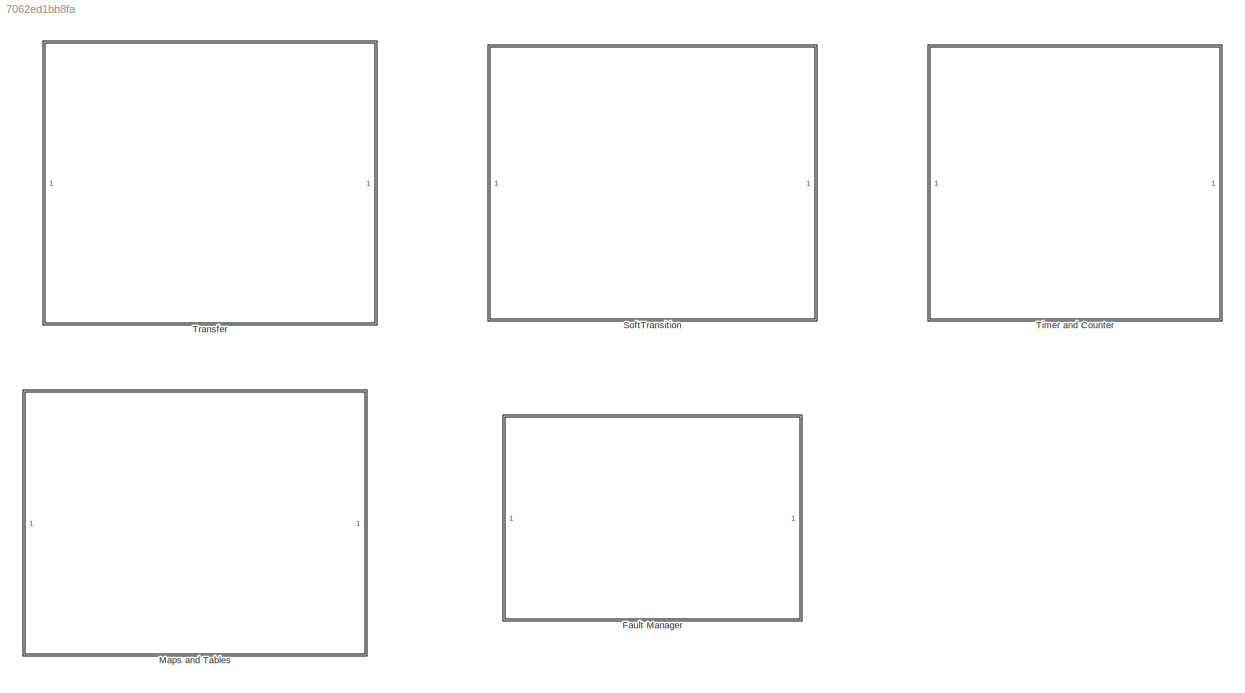
MODEL slx_7062ed1bb8fa
KIND model
CONFIG AbsTol = auto
CONFIG EnableMultiTasking = off
CONFIG FixedStep = 1
CONFIG MaxStep = auto
CONFIG MinStep = auto
CONFIG RelTol = 1e-3
CONFIG SampleTimeConstraint = Unconstrained
CONFIG SolverName = FixedStepDiscrete
CONFIG StartTime = 0.0
CONFIG StopTime = 10
BLOCK [SubSystem] Fault Manager
  Commented = on
  Ports = []
  RequestExecContextInheritance = off
BLOCK [Constant] Fault Manager/Constant
  Value = FM_Test_fault_Group_CA
BLOCK [Display] Fault Manager/Display
  Decimation = 1
  Ports = [1]
BLOCK [Display] Fault Manager/Display1
  Decimation = 1
  Ports = [1]
BLOCK [Reference] Fault Manager/Get_FG_Status  REF=sllib/Fault Manager/Get_FG_Status  (lib defined in slx_2b0aa6d284ff)
  Ports = [1, 1]
  SourceBlock = sllib/Fault Manager/Get_FG_Status
  SourceProductName = sllib
BLOCK [Scope] Fault Manager/Scope
  Floating = off
  NumInputPorts = 1
  Ports = [1]
  ScopeSpecificationString = Simulink.scopes.TimeScopeBlockCfg('CurrentConfiguration', extmgr.ConfigurationSet(extmgr.Configuration('Core','General UI',true),extmgr.Configuration('Core','Source UI',true),extmgr.Configuration('Sources','WiredSimulink',true,'DataLoggingVariableName','ScopeData1'),extmgr.Configuration('Visuals','Time Domain',true,'SerializedDisplays',{struct('MinYLimReal','-1.00000','MaxYLimReal','1.00000','YLab...<+1372ch>
BLOCK [SubSystem] Maps and Tables
  Commented = on
  Ports = []
  RequestExecContextInheritance = off
BLOCK [Constant] Maps and Tables/Constant
  Value = linspace(0,100,11)
BLOCK [Constant] Maps and Tables/Constant1
  Value = 0
BLOCK [Constant] Maps and Tables/Constant2
  Value = -10
BLOCK [Constant] Maps and Tables/Constant3
  Value = 18.987
BLOCK [Constant] Maps and Tables/Constant4
  Value = 2.5
BLOCK [Display] Maps and Tables/Display
  Decimation = 1
  Ports = [1]
BLOCK [Display] Maps and Tables/Display1
  Decimation = 1
  Ports = [1]
BLOCK [Display] Maps and Tables/Display2
  Decimation = 1
  Ports = [1]
BLOCK [Display] Maps and Tables/Display3
  Decimation = 1
  Ports = [1]
BLOCK [Reference] Maps and Tables/RevMap  REF=sllib/Maps and Tables/RevMap  (lib defined in slx_2b0aa6d284ff)
  Ports = [2, 1]
  SourceBlock = sllib/Maps and Tables/RevMap
  SourceProductName = sllib
  SourceType = RevMap
BLOCK [Reference] Maps and Tables/Table1D_Read  REF=sllib/Maps and Tables/Table1D_Read  (lib defined in slx_2b0aa6d284ff)
  Ports = [2, 1]
  SourceBlock = sllib/Maps and Tables/Table1D_Read
  SourceProductName = sllib
  SourceType = Table1D_Read
BLOCK [Reference] Maps and Tables/Table1D_Read_Rollover  REF=sllib/Maps and Tables/Table1D_Read_Rollover  (lib defined in slx_2b0aa6d284ff)
  AttributesFormatString = %<IndexMode>
  Ports = [2, 1]
  SourceBlock = sllib/Maps and Tables/Table1D_Read_Rollover
  SourceProductName = sllib
  SourceType = Table1D_Read_Rollover
BLOCK [Reference] Maps and Tables/Table1D_Write  REF=sllib/Maps and Tables/Table1D_Write  (lib defined in slx_2b0aa6d284ff)
  AttributesFormatString = %<IndexMode>
  Ports = [3, 1]
  SourceBlock = sllib/Maps and Tables/Table1D_Write
  SourceProductName = sllib
  SourceType = Table1D_Write
BLOCK [SubSystem] SoftTransition
  Commented = on
  Ports = []
  RequestExecContextInheritance = off
BLOCK [Constant] SoftTransition/Constant
  OutDataTypeStr = fixdt(1,16,2^-10,0)
  Value = 3
BLOCK [Constant] SoftTransition/Constant1
  OutDataTypeStr = fixdt(1,16,2^-10,0)
  Value = -1
BLOCK [Constant] SoftTransition/Constant2
  OutDataTypeStr = boolean
  Value = 0
BLOCK [Constant] SoftTransition/Constant3
  OutDataTypeStr = uint32
BLOCK [Constant] SoftTransition/Constant4
  OutDataTypeStr = uint32
  Value = 1000
BLOCK [Constant] SoftTransition/Constant5
  OutDataTypeStr = Inherit: Inherit via back propagation
  Value = 0.1
BLOCK [Constant] SoftTransition/Constant6
  OutDataTypeStr = Inherit: Inherit via back propagation
  Value = 0.1
BLOCK [Constant] SoftTransition/Constant7
  OutDataTypeStr = Inherit: Inherit via back propagation
  Value = 3.5
BLOCK [Constant] SoftTransition/Constant8
  OutDataTypeStr = Inherit: Inherit via back propagation
  Value = 2.5
BLOCK [Constant] SoftTransition/Constant9
  OutDataTypeStr = Inherit: Inherit via back propagation
  Value = 0.1
BLOCK [DataTypeConversion] SoftTransition/Data Type Conversion
  OutDataTypeStr = int8
  RndMeth = Floor
  SaturateOnIntegerOverflow = off
BLOCK [DataTypeConversion] SoftTransition/Data Type Conversion1
  OutDataTypeStr = boolean
  RndMeth = Floor
  SaturateOnIntegerOverflow = off
BLOCK [DataTypeConversion] SoftTransition/Data Type Conversion2
  OutDataTypeStr = boolean
  RndMeth = Floor
  SaturateOnIntegerOverflow = off
BLOCK [DataTypeConversion] SoftTransition/Data Type Conversion3
  OutDataTypeStr = double
  RndMeth = Floor
  SaturateOnIntegerOverflow = off
BLOCK [DataTypeConversion] SoftTransition/Data Type Conversion4
  OutDataTypeStr = double
  RndMeth = Floor
  SaturateOnIntegerOverflow = off
BLOCK [Display] SoftTransition/Display
  Decimation = 1
  Ports = [1]
BLOCK [Product] SoftTransition/Divide
  Inputs = */
  OutDataTypeStr = fixdt(0,16,2^-10,0)
  Ports = [2, 1]
BLOCK [Gain] SoftTransition/Gain
  Gain = 20
BLOCK [Reference] SoftTransition/Ramp  REF=sllib/Soft Transitions/Ramp  (lib defined in slx_2b0aa6d284ff)
  Ports = [6, 2]
  SourceBlock = sllib/Soft Transitions/Ramp
  SourceProductName = sllib
  SourceType = Ramp
BLOCK [Reference] SoftTransition/Ramp_T  REF=sllib/Soft Transitions/Ramp_T  (lib defined in slx_2b0aa6d284ff)
  Ports = [7, 2]
  SourceBlock = sllib/Soft Transitions/Ramp_T
  SourceProductName = sllib
  SourceType = SoftTransition_Active
BLOCK [Scope] SoftTransition/Scope
  Floating = off
  NumInputPorts = 2
  Ports = [2]
  ScopeSpecificationString = Simulink.scopes.TimeScopeBlockCfg('CurrentConfiguration', extmgr.ConfigurationSet(extmgr.Configuration('Core','General UI',true),extmgr.Configuration('Core','Source UI',true),extmgr.Configuration('Sources','WiredSimulink',true,'DataLoggingVariableName','ScopeData1'),extmgr.Configuration('Visuals','Time Domain',true,'PlotType','Stairs','SerializedDisplays',{struct('MinYLimReal','-2.5','MaxYLimReal'...<+2412ch>
BLOCK [Scope] SoftTransition/Scope1
  Floating = off
  NumInputPorts = 6
  Ports = [6]
  ScopeSpecificationString = Simulink.scopes.TimeScopeBlockCfg('CurrentConfiguration', extmgr.ConfigurationSet(extmgr.Configuration('Core','General UI',true),extmgr.Configuration('Core','Source UI',true),extmgr.Configuration('Sources','WiredSimulink',true,'DataLoggingVariableName','ScopeData2'),extmgr.Configuration('Visuals','Time Domain',true,'PlotType','Stairs','SerializedDisplays',{struct('MinYLimReal','-0.125','MaxYLimRea...<+4880ch>
BLOCK [Scope] SoftTransition/Scope2
  Floating = off
  NumInputPorts = 6
  Ports = [6]
  ScopeSpecificationString = Simulink.scopes.TimeScopeBlockCfg('CurrentConfiguration', extmgr.ConfigurationSet(extmgr.Configuration('Core','General UI',true),extmgr.Configuration('Core','Source UI',true),extmgr.Configuration('Sources','WiredSimulink',true,'DataLoggingVariableName','ScopeData1'),extmgr.Configuration('Visuals','Time Domain',true,'PlotType','Stairs','SerializedDisplays',{struct('MinYLimReal','-0.125','MaxYLimRea...<+4885ch>
BLOCK [SubSystem] SoftTransition/Signal Builder
  ClipboardFcn = sigbuilder_block('clipboard');
  CloseFcn = sigbuilder_block('close');
  ContinueFcn = sigbuilder_block('continue');
  CopyFcn = sigbuilder_block('copy');
  DeleteFcn = sigbuilder_block('delete');
  LoadFcn = sigbuilder_block('load');
  MaskHideContents = on
  ModelCloseFcn = sigbuilder_block('modelClose');
  NameChangeFcn = sigbuilder_block('namechange');
  OpenFcn = sigbuilder_block('open',[437.6 199.2 550.4 400 ]);
  PauseFcn = sigbuilder_block('pause');
  Ports = [0, 1]
  PreSaveFcn = sigbuilder_block('preSave');
  RequestExecContextInheritance = off
  StartFcn = sigbuilder_block('start');
  StopFcn = sigbuilder_block('stop');
  Tag = STV Subsys
BLOCK [Demux] SoftTransition/Signal Builder/Demux
  DisplayOption = none
  Outputs = 1
  Ports = [1, 1]
  Tag = STV Demux
BLOCK [FromWorkspace] SoftTransition/Signal Builder/FromWs
  Tag = STV FromWs
  VariableName = tuvar
BLOCK [Outport] SoftTransition/Signal Builder/Signal 1
  Tag = STV Outport
BLOCK [SubSystem] SoftTransition/Signal Builder1
  ClipboardFcn = sigbuilder_block('clipboard');
  CloseFcn = sigbuilder_block('close');
  ContinueFcn = sigbuilder_block('continue');
  CopyFcn = sigbuilder_block('copy');
  DeleteFcn = sigbuilder_block('delete');
  LoadFcn = sigbuilder_block('load');
  MaskHideContents = on
  ModelCloseFcn = sigbuilder_block('modelClose');
  NameChangeFcn = sigbuilder_block('namechange');
  OpenFcn = sigbuilder_block('open',[680.25 149.25 550.5 399.75 ]);
  PauseFcn = sigbuilder_block('pause');
  Ports = [0, 4]
  PreSaveFcn = sigbuilder_block('preSave');
  RequestExecContextInheritance = off
  StartFcn = sigbuilder_block('start');
  StopFcn = sigbuilder_block('stop');
  Tag = STV Subsys
BLOCK [Demux] SoftTransition/Signal Builder1/Demux
  DisplayOption = none
  Ports = [1, 4]
  Tag = STV Demux
BLOCK [FromWorkspace] SoftTransition/Signal Builder1/FromWs
  OutputAfterFinalValue = Holding final value
  SampleTime = -1
  Tag = STV FromWs
  VariableName = tuvar
BLOCK [Outport] SoftTransition/Signal Builder1/Signal 1
  Tag = STV Outport
BLOCK [Outport] SoftTransition/Signal Builder1/Signal 2
  Port = 2
  Tag = STV Outport
BLOCK [Outport] SoftTransition/Signal Builder1/Signal 3
  Port = 3
  Tag = STV Outport
BLOCK [Outport] SoftTransition/Signal Builder1/Signal 4
  Port = 4
  Tag = STV Outport
BLOCK [Reference] SoftTransition/SlopLim  REF=sllib/Soft Transitions/SlopLim  (lib defined in slx_2b0aa6d284ff)
  Ports = [5, 1]
  SourceBlock = sllib/Soft Transitions/SlopLim
  SourceProductName = sllib
  SourceType = SlopLim
BLOCK [SubSystem] Timer and Counter
  Ports = []
  RequestExecContextInheritance = off
BLOCK [Constant] Timer and Counter/Constant
  Value = 2
BLOCK [Constant] Timer and Counter/Constant1
  Value = 2
BLOCK [Constant] Timer and Counter/Constant2
BLOCK [Constant] Timer and Counter/Constant3
  OutDataTypeStr = boolean
  Value = 0
BLOCK [Constant] Timer and Counter/Constant4
  Value = 3
BLOCK [Constant] Timer and Counter/Constant5
  Value = 2
BLOCK [Constant] Timer and Counter/Constant6
BLOCK [Constant] Timer and Counter/Constant7
  OutDataTypeStr = boolean
BLOCK [DataTypeConversion] Timer and Counter/Data Type Conversion
  OutDataTypeStr = boolean
  RndMeth = Floor
  SaturateOnIntegerOverflow = off
BLOCK [DataTypeConversion] Timer and Counter/Data Type Conversion1
  OutDataTypeStr = boolean
  RndMeth = Floor
  SaturateOnIntegerOverflow = off
BLOCK [Reference] Timer and Counter/Debounce_DT  REF=sllib/Timer and counter operators/Debounce_DT  (lib defined in slx_2b0aa6d284ff)
  Ports = [4, 1]
  SourceBlock = sllib/Timer and counter operators/Debounce_DT
  SourceProductName = sllib
  SourceType = Debounce_DT
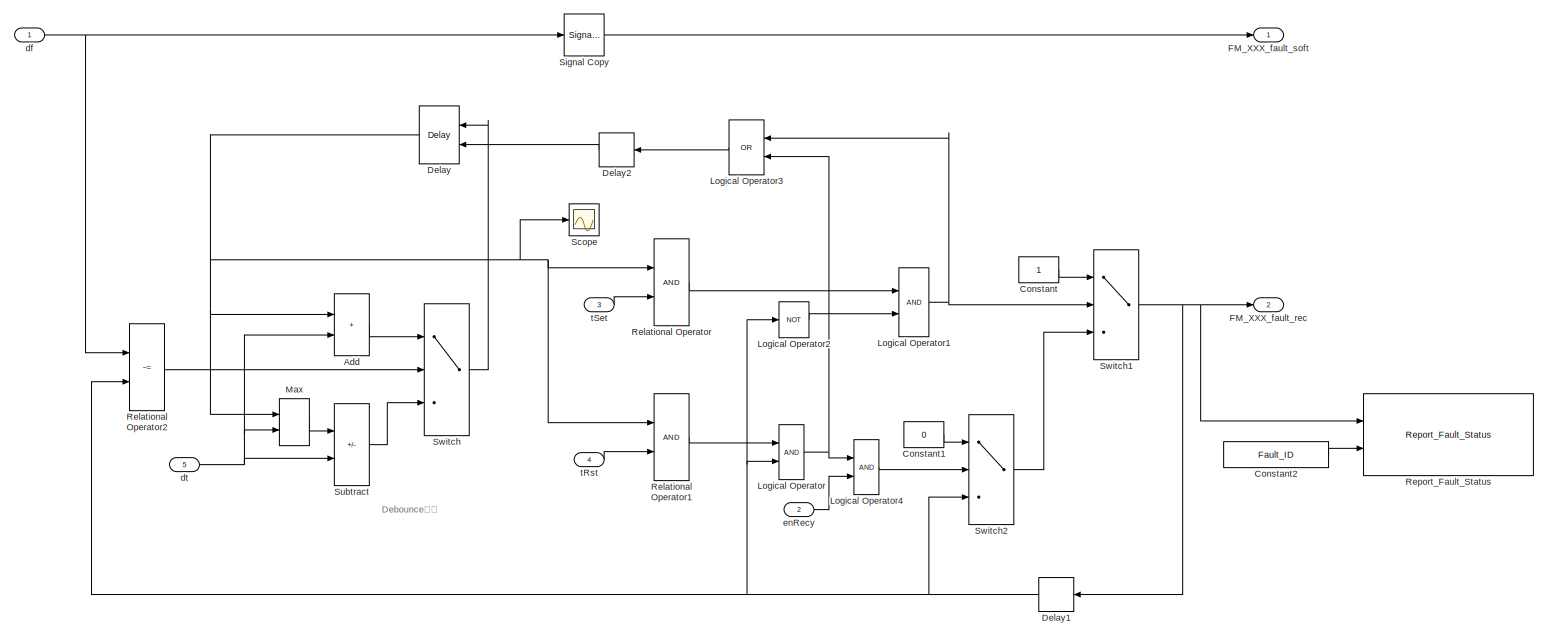
[diagram: Timer and Counter/FM2 - part 1/1, most of the canvas]
BLOCK [SubSystem] Timer and Counter/FM2
  AncestorBlock = sllib/Fault Manager/FM2
  Ports = [5, 2]
  RequestExecContextInheritance = off
BLOCK [Sum] Timer and Counter/FM2/Add
  IconShape = rectangular
  InputSameDT = on
  OutDataTypeStr = Inherit: Same as first input
  Ports = [2, 1]
  SaturateOnIntegerOverflow = on
BLOCK [Constant] Timer and Counter/FM2/Constant
  OutDataTypeStr = boolean
BLOCK [Constant] Timer and Counter/FM2/Constant1
  OutDataTypeStr = boolean
  Value = 0
BLOCK [Constant] Timer and Counter/FM2/Constant2
  Value = Fault_ID
BLOCK [Delay] Timer and Counter/FM2/Delay
  DelayLength = 1
  ExternalReset = Rising
  InputPortMap = u0,r5
  NameLocation = top
  Ports = [2, 1]
BLOCK [Delay] Timer and Counter/FM2/Delay1
  DelayLength = 1
  InputPortMap = u0
  NameLocation = top
  Ports = [1, 1]
BLOCK [Delay] Timer and Counter/FM2/Delay2
  DelayLength = 1
  InputPortMap = u0
  NameLocation = top
  Ports = [1, 1]
BLOCK [Outport] Timer and Counter/FM2/FM_XXX_fault_rec
  Port = 2
BLOCK [Outport] Timer and Counter/FM2/FM_XXX_fault_soft
BLOCK [Logic] Timer and Counter/FM2/Logical Operator
  OutDataTypeStr = boolean
  Ports = [2, 1]
BLOCK [Logic] Timer and Counter/FM2/Logical Operator1
  OutDataTypeStr = boolean
  Ports = [2, 1]
BLOCK [Logic] Timer and Counter/FM2/Logical Operator2
  Operator = NOT
  OutDataTypeStr = boolean
  Ports = [1, 1]
BLOCK [Logic] Timer and Counter/FM2/Logical Operator3
  NameLocation = top
  Operator = OR
  OutDataTypeStr = boolean
  Ports = [2, 1]
BLOCK [Logic] Timer and Counter/FM2/Logical Operator4
  OutDataTypeStr = boolean
  Ports = [2, 1]
BLOCK [MinMax] Timer and Counter/FM2/Max
  Function = max
  InputSameDT = on
  Inputs = 2
  Ports = [2, 1]
BLOCK [RelationalOperator] Timer and Counter/FM2/Relational Operator
  OutDataTypeStr = boolean
  Ports = [2, 1]
  RndMeth = Simplest
  ZeroCross = off
BLOCK [RelationalOperator] Timer and Counter/FM2/Relational Operator1
  OutDataTypeStr = boolean
  Ports = [2, 1]
  RndMeth = Simplest
  ZeroCross = off
BLOCK [RelationalOperator] Timer and Counter/FM2/Relational Operator2
  Operator = ~=
  OutDataTypeStr = boolean
  Ports = [2, 1]
  RndMeth = Simplest
  ZeroCross = off
BLOCK [Reference] Timer and Counter/FM2/Report_Fault_Status  REF=sllib/Fault Manager/Report_Fault_Status  (lib defined in slx_2b0aa6d284ff)
  Commented = on
  Ports = [2]
  SourceBlock = sllib/Fault Manager/Report_Fault_Status
  SourceProductName = sllib
  SourceType = Report_Fault_Status
BLOCK [Scope] Timer and Counter/FM2/Scope
  Floating = off
  NumInputPorts = 1
  Ports = [1]
  ScopeSpecificationString = Simulink.scopes.TimeScopeBlockCfg('CurrentConfiguration', extmgr.ConfigurationSet(extmgr.Configuration('Core','General UI',true),extmgr.Configuration('Core','Source UI',true),extmgr.Configuration('Sources','WiredSimulink',true,'DataLoggingVariableName','ScopeData4'),extmgr.Configuration('Visuals','Time Domain',true,'SerializedDisplays',{struct('MinYLimReal','-0.375','MaxYLimReal','3.375','YLabelRe...<+1382ch>
BLOCK [SignalConversion] Timer and Counter/FM2/Signal Copy
  OverrideOpt = off
BLOCK [Sum] Timer and Counter/FM2/Subtract
  IconShape = rectangular
  InputSameDT = on
  Inputs = +-
  OutDataTypeStr = Inherit: Same as first input
  Ports = [2, 1]
  SaturateOnIntegerOverflow = on
BLOCK [Switch] Timer and Counter/FM2/Switch
  Criteria = u2 ~= 0
  SaturateOnIntegerOverflow = off
BLOCK [Switch] Timer and Counter/FM2/Switch1
  Criteria = u2 ~= 0
  SaturateOnIntegerOverflow = off
BLOCK [Switch] Timer and Counter/FM2/Switch2
  Criteria = u2 ~= 0
  SaturateOnIntegerOverflow = off
BLOCK [Inport] Timer and Counter/FM2/df
  OutDataTypeStr = boolean
BLOCK [Inport] Timer and Counter/FM2/dt
  Port = 5
BLOCK [Inport] Timer and Counter/FM2/enRecy
  OutDataTypeStr = boolean
  Port = 2
BLOCK [Inport] Timer and Counter/FM2/tRst
  Port = 4
BLOCK [Inport] Timer and Counter/FM2/tSet
  Port = 3
BLOCK [Logic] Timer and Counter/Logical Operator
  Operator = NOT
  OutDataTypeStr = boolean
  Ports = [1, 1]
BLOCK [Scope] Timer and Counter/Scope
  Floating = off
  NumInputPorts = 2
  Ports = [2]
  ScopeSpecificationString = Simulink.scopes.TimeScopeBlockCfg('CurrentConfiguration', extmgr.ConfigurationSet(extmgr.Configuration('Core','General UI',true),extmgr.Configuration('Core','Source UI',true),extmgr.Configuration('Sources','WiredSimulink',true,'DataLoggingVariableName','ScopeData1'),extmgr.Configuration('Visuals','Time Domain',true,'SerializedDisplays',{struct('MinYLimReal','-0.125','MaxYLimReal','1.125','YLabelRe...<+2041ch>
BLOCK [Scope] Timer and Counter/Scope1
  Floating = off
  NumInputPorts = 2
  Ports = [2]
  ScopeSpecificationString = Simulink.scopes.TimeScopeBlockCfg('CurrentConfiguration', extmgr.ConfigurationSet(extmgr.Configuration('Core','General UI',true),extmgr.Configuration('Core','Source UI',true),extmgr.Configuration('Sources','WiredSimulink',true,'DataLoggingVariableName','ScopeData2'),extmgr.Configuration('Visuals','Time Domain',true,'SerializedDisplays',{struct('MinYLimReal','-0.125','MaxYLimReal','1.125','YLabelRe...<+2040ch>
BLOCK [Scope] Timer and Counter/Scope2
  Floating = off
  NumInputPorts = 2
  Ports = [2]
  ScopeSpecificationString = Simulink.scopes.TimeScopeBlockCfg('CurrentConfiguration', extmgr.ConfigurationSet(extmgr.Configuration('Core','General UI',true),extmgr.Configuration('Core','Source UI',true),extmgr.Configuration('Sources','WiredSimulink',true,'DataLoggingVariableName','ScopeData3'),extmgr.Configuration('Visuals','Time Domain',true,'SerializedDisplays',{struct('MinYLimReal','-0.125','MaxYLimReal','1.125','YLabelRe...<+2039ch>
BLOCK [SubSystem] Timer and Counter/Signal Builder
  ClipboardFcn = sigbuilder_block('clipboard');
  CloseFcn = sigbuilder_block('close');
  ContinueFcn = sigbuilder_block('continue');
  CopyFcn = sigbuilder_block('copy');
  DeleteFcn = sigbuilder_block('delete');
  LoadFcn = sigbuilder_block('load');
  MaskHideContents = on
  ModelCloseFcn = sigbuilder_block('modelClose');
  NameChangeFcn = sigbuilder_block('namechange');
  OpenFcn = sigbuilder_block('open',[6.75 330 550.5 399.75 ]);
  PauseFcn = sigbuilder_block('pause');
  Ports = [0, 1]
  PreSaveFcn = sigbuilder_block('preSave');
  RequestExecContextInheritance = off
  StartFcn = sigbuilder_block('start');
  StopFcn = sigbuilder_block('stop');
  Tag = STV Subsys
BLOCK [Demux] Timer and Counter/Signal Builder/Demux
  DisplayOption = none
  Outputs = 1
  Ports = [1, 1]
  Tag = STV Demux
BLOCK [FromWorkspace] Timer and Counter/Signal Builder/FromWs
  OutputAfterFinalValue = Holding final value
  Tag = STV FromWs
  VariableName = tuvar
BLOCK [Outport] Timer and Counter/Signal Builder/Signal 1
  Tag = STV Outport
BLOCK [SubSystem] Timer and Counter/Signal Builder1
  ClipboardFcn = sigbuilder_block('clipboard');
  CloseFcn = sigbuilder_block('close');
  ContinueFcn = sigbuilder_block('continue');
  CopyFcn = sigbuilder_block('copy');
  DeleteFcn = sigbuilder_block('delete');
  LoadFcn = sigbuilder_block('load');
  MaskHideContents = on
  ModelCloseFcn = sigbuilder_block('modelClose');
  NameChangeFcn = sigbuilder_block('namechange');
  OpenFcn = sigbuilder_block('open',[54.75 312.75 550.5 399.75 ]);
  PauseFcn = sigbuilder_block('pause');
  Ports = [0, 1]
  PreSaveFcn = sigbuilder_block('preSave');
  RequestExecContextInheritance = off
  StartFcn = sigbuilder_block('start');
  StopFcn = sigbuilder_block('stop');
  Tag = STV Subsys
BLOCK [Demux] Timer and Counter/Signal Builder1/Demux
  DisplayOption = none
  Outputs = 1
  Ports = [1, 1]
  Tag = STV Demux
BLOCK [FromWorkspace] Timer and Counter/Signal Builder1/FromWs
  Tag = STV FromWs
  VariableName = tuvar
BLOCK [Outport] Timer and Counter/Signal Builder1/Signal 1
  Tag = STV Outport
BLOCK [Reference] Timer and Counter/TurnOnDelay  REF=sllib/Timer and counter operators/TurnOnDelay  (lib defined in slx_2b0aa6d284ff)
  Ports = [4, 1]
  SourceBlock = sllib/Timer and counter operators/TurnOnDelay
  SourceProductName = sllib
  SourceType = TurnOnDelay
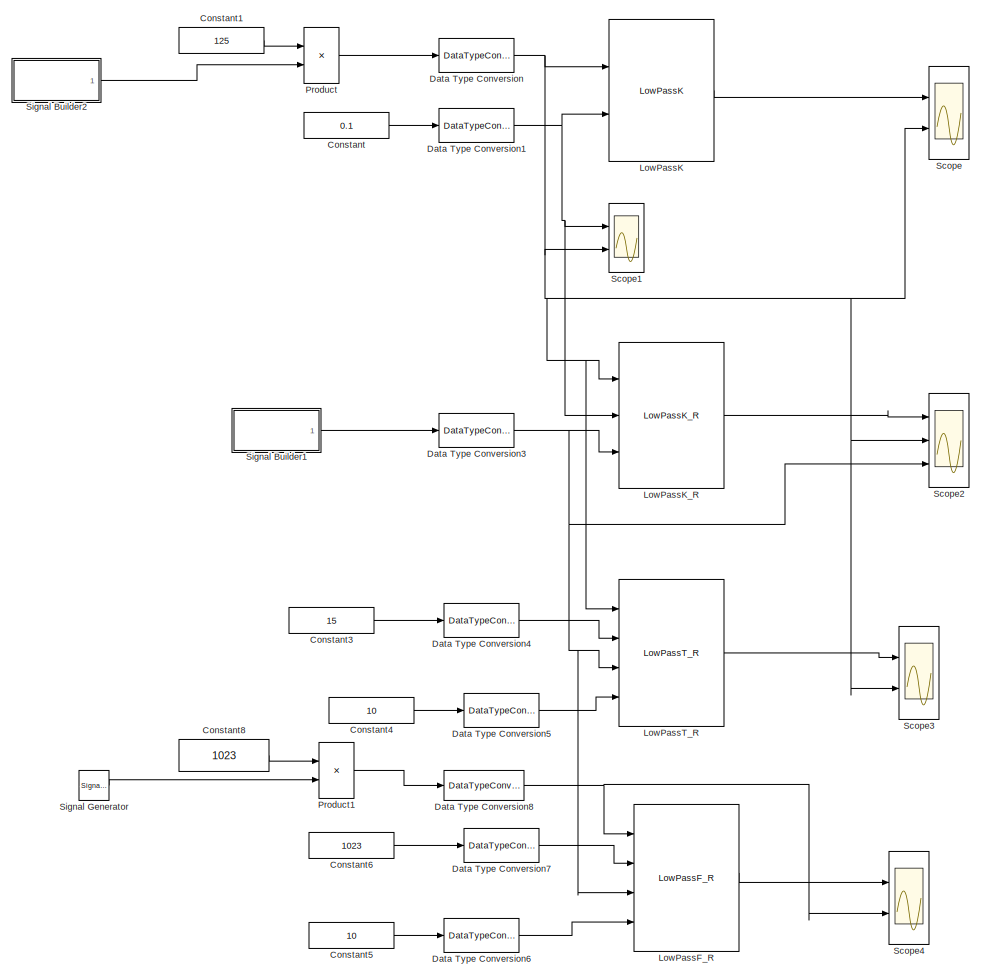
[diagram: Transfer - part 1/2, full width, middle band]
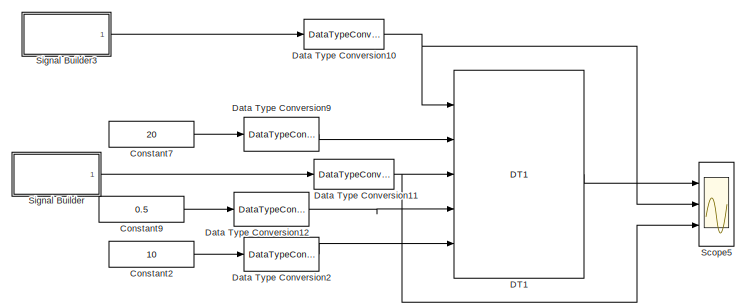
[diagram: Transfer - part 2/2, full width, bottom band]
BLOCK [SubSystem] Transfer
  Commented = on
  Ports = []
  RequestExecContextInheritance = off
BLOCK [Constant] Transfer/Constant
  Value = 0.1
BLOCK [Constant] Transfer/Constant1
  Value = 125
BLOCK [Constant] Transfer/Constant2
  Value = 10
BLOCK [Constant] Transfer/Constant3
  Value = 15
BLOCK [Constant] Transfer/Constant4
  Value = 10
BLOCK [Constant] Transfer/Constant5
  Value = 10
BLOCK [Constant] Transfer/Constant6
  Value = 1023
BLOCK [Constant] Transfer/Constant7
  Value = 20
BLOCK [Constant] Transfer/Constant8
  Value = 1023
BLOCK [Constant] Transfer/Constant9
  Value = 0.5
BLOCK [Reference] Transfer/DT1  REF=sllib/Transfer Functions/DT1  (lib defined in slx_2b0aa6d284ff)
  Ports = [5, 1]
  SourceBlock = sllib/Transfer Functions/DT1
  SourceProductName = sllib
  SourceType = DT1
BLOCK [DataTypeConversion] Transfer/Data Type Conversion
  OutDataTypeStr = double
  RndMeth = Floor
  SaturateOnIntegerOverflow = off
BLOCK [DataTypeConversion] Transfer/Data Type Conversion1
  OutDataTypeStr = fixdt(1,32,2^-30,0)
  RndMeth = Floor
  SaturateOnIntegerOverflow = off
BLOCK [DataTypeConversion] Transfer/Data Type Conversion10
  OutDataTypeStr = fixdt(1,16,2^-5,0)
  RndMeth = Floor
  SaturateOnIntegerOverflow = off
BLOCK [DataTypeConversion] Transfer/Data Type Conversion11
  OutDataTypeStr = boolean
  RndMeth = Floor
  SaturateOnIntegerOverflow = off
BLOCK [DataTypeConversion] Transfer/Data Type Conversion12
  RndMeth = Floor
  SaturateOnIntegerOverflow = off
BLOCK [DataTypeConversion] Transfer/Data Type Conversion2
  OutDataTypeStr = uint32
  RndMeth = Floor
  SaturateOnIntegerOverflow = off
BLOCK [DataTypeConversion] Transfer/Data Type Conversion3
  RndMeth = Floor
  SaturateOnIntegerOverflow = off
BLOCK [DataTypeConversion] Transfer/Data Type Conversion4
  OutDataTypeStr = single
  RndMeth = Floor
  SaturateOnIntegerOverflow = off
BLOCK [DataTypeConversion] Transfer/Data Type Conversion5
  OutDataTypeStr = uint32
  RndMeth = Floor
  SaturateOnIntegerOverflow = off
BLOCK [DataTypeConversion] Transfer/Data Type Conversion6
  OutDataTypeStr = uint32
  RndMeth = Floor
  SaturateOnIntegerOverflow = off
BLOCK [DataTypeConversion] Transfer/Data Type Conversion7
  OutDataTypeStr = fixdt(1,16,2^-5,0)
  RndMeth = Floor
  SaturateOnIntegerOverflow = off
BLOCK [DataTypeConversion] Transfer/Data Type Conversion8
  OutDataTypeStr = fixdt(1,16,2^-5,0)
  RndMeth = Floor
  SaturateOnIntegerOverflow = off
BLOCK [DataTypeConversion] Transfer/Data Type Conversion9
  OutDataTypeStr = uint32
  RndMeth = Floor
  SaturateOnIntegerOverflow = off
BLOCK [Reference] Transfer/LowPassF_R  REF=sllib/Transfer Functions/LowPassF_R  (lib defined in slx_2b0aa6d284ff)
  Ports = [4, 1]
  SourceBlock = sllib/Transfer Functions/LowPassF_R
  SourceProductName = sllib
  SourceType = LowPassF_R
BLOCK [Reference] Transfer/LowPassK  REF=sllib/Transfer Functions/LowPassK  (lib defined in slx_2b0aa6d284ff)
  Ports = [2, 1]
  SourceBlock = sllib/Transfer Functions/LowPassK
  SourceProductName = sllib
  SourceType = LowPassK
BLOCK [Reference] Transfer/LowPassK_R  REF=sllib/Transfer Functions/LowPassK_R  (lib defined in slx_2b0aa6d284ff)
  Ports = [3, 1]
  SourceBlock = sllib/Transfer Functions/LowPassK_R
  SourceProductName = sllib
  SourceType = LowPassK
BLOCK [Reference] Transfer/LowPassT_R  REF=sllib/Transfer Functions/LowPassT_R  (lib defined in slx_2b0aa6d284ff)
  Ports = [4, 1]
  SourceBlock = sllib/Transfer Functions/LowPassT_R
  SourceProductName = sllib
  SourceType = LowPassT_R
BLOCK [Product] Transfer/Product
  Ports = [2, 1]
BLOCK [Product] Transfer/Product1
  Ports = [2, 1]
BLOCK [Scope] Transfer/Scope
  Floating = off
  NumInputPorts = 2
  Ports = [2]
  ScopeSpecificationString = Simulink.scopes.TimeScopeBlockCfg('CurrentConfiguration', extmgr.ConfigurationSet(extmgr.Configuration('Core','General UI',true),extmgr.Configuration('Core','Source UI',true),extmgr.Configuration('Sources','WiredSimulink',true),extmgr.Configuration('Visuals','Time Domain',true,'PlotType','Stairs','SerializedDisplays',{struct('MinYLimReal','25.00000','MaxYLimReal','225.00000','YLabelReal','','MinYL...<+2617ch>
BLOCK [Scope] Transfer/Scope1
  Floating = off
  NumInputPorts = 2
  Ports = [2]
  ScopeSpecificationString = Simulink.scopes.TimeScopeBlockCfg('CurrentConfiguration', extmgr.ConfigurationSet(extmgr.Configuration('Core','General UI',true),extmgr.Configuration('Core','Source UI',true),extmgr.Configuration('Sources','WiredSimulink',true,'DataLoggingVariableName','ScopeData1'),extmgr.Configuration('Visuals','Time Domain',true,'SerializedDisplays',{struct('MinYLimReal','0.09','MaxYLimReal','0.11','YLabelReal'...<+2193ch>
BLOCK [Scope] Transfer/Scope2
  Floating = off
  NumInputPorts = 3
  Ports = [3]
  ScopeSpecificationString = Simulink.scopes.TimeScopeBlockCfg('CurrentConfiguration', extmgr.ConfigurationSet(extmgr.Configuration('Core','General UI',true),extmgr.Configuration('Core','Source UI',true),extmgr.Configuration('Sources','WiredSimulink',true,'DataLoggingVariableName','ScopeData2'),extmgr.Configuration('Visuals','Time Domain',true,'PlotType','Stairs','SerializedDisplays',{struct('MinYLimReal','-15.625','MaxYLimRe...<+1886ch>
BLOCK [Scope] Transfer/Scope3
  Floating = off
  NumInputPorts = 2
  Ports = [2]
  ScopeSpecificationString = Simulink.scopes.TimeScopeBlockCfg('CurrentConfiguration', extmgr.ConfigurationSet(extmgr.Configuration('Core','General UI',true),extmgr.Configuration('Core','Source UI',true),extmgr.Configuration('Sources','WiredSimulink',true,'DataLoggingVariableName','ScopeData1'),extmgr.Configuration('Visuals','Time Domain',true,'PlotType','Stairs','SerializedDisplays',{struct('MinYLimReal','-15.625','MaxYLimRe...<+2422ch>
BLOCK [Scope] Transfer/Scope4
  Floating = off
  NumInputPorts = 2
  Ports = [2]
  ScopeSpecificationString = Simulink.scopes.TimeScopeBlockCfg('CurrentConfiguration', extmgr.ConfigurationSet(extmgr.Configuration('Core','General UI',true),extmgr.Configuration('Core','Source UI',true),extmgr.Configuration('Sources','WiredSimulink',true,'DataLoggingVariableName','ScopeData2'),extmgr.Configuration('Visuals','Time Domain',true,'SerializedDisplays',{struct('MinYLimReal','-1264.53125','MaxYLimReal','1273.59375'...<+2498ch>
BLOCK [Scope] Transfer/Scope5
  Floating = off
  NumInputPorts = 3
  Ports = [3]
  ScopeSpecificationString = Simulink.scopes.TimeScopeBlockCfg('CurrentConfiguration', extmgr.ConfigurationSet(extmgr.Configuration('Core','General UI',true),extmgr.Configuration('Core','Source UI',true),extmgr.Configuration('Sources','WiredSimulink',true,'DataLoggingVariableName','ScopeData1'),extmgr.Configuration('Visuals','Time Domain',true,'PlotType','Stairs','SerializedDisplays',{struct('MinYLimReal','-0.80078','MaxYLimR...<+2447ch>
BLOCK [SubSystem] Transfer/Signal Builder
  ClipboardFcn = sigbuilder_block('clipboard');
  CloseFcn = sigbuilder_block('close');
  ContinueFcn = sigbuilder_block('continue');
  CopyFcn = sigbuilder_block('copy');
  DeleteFcn = sigbuilder_block('delete');
  LoadFcn = sigbuilder_block('load');
  MaskHideContents = on
  ModelCloseFcn = sigbuilder_block('modelClose');
  NameChangeFcn = sigbuilder_block('namechange');
  OpenFcn = sigbuilder_block('open',[601.5 297.75 550.5 399.75 ]);
  PauseFcn = sigbuilder_block('pause');
  Ports = [0, 1]
  PreSaveFcn = sigbuilder_block('preSave');
  RequestExecContextInheritance = off
  StartFcn = sigbuilder_block('start');
  StopFcn = sigbuilder_block('stop');
  Tag = STV Subsys
BLOCK [Demux] Transfer/Signal Builder/Demux
  DisplayOption = none
  Outputs = 1
  Ports = [1, 1]
  Tag = STV Demux
BLOCK [FromWorkspace] Transfer/Signal Builder/FromWs
  Tag = STV FromWs
  VariableName = tuvar
BLOCK [Outport] Transfer/Signal Builder/Signal 1
  Tag = STV Outport
BLOCK [SubSystem] Transfer/Signal Builder1
  ClipboardFcn = sigbuilder_block('clipboard');
  CloseFcn = sigbuilder_block('close');
  ContinueFcn = sigbuilder_block('continue');
  CopyFcn = sigbuilder_block('copy');
  DeleteFcn = sigbuilder_block('delete');
  LoadFcn = sigbuilder_block('load');
  MaskHideContents = on
  ModelCloseFcn = sigbuilder_block('modelClose');
  NameChangeFcn = sigbuilder_block('namechange');
  OpenFcn = sigbuilder_block('open',[437.6 199.2 550.4 400 ]);
  PauseFcn = sigbuilder_block('pause');
  Ports = [0, 1]
  PreSaveFcn = sigbuilder_block('preSave');
  RequestExecContextInheritance = off
  StartFcn = sigbuilder_block('start');
  StopFcn = sigbuilder_block('stop');
  Tag = STV Subsys
BLOCK [Demux] Transfer/Signal Builder1/Demux
  DisplayOption = none
  Outputs = 1
  Ports = [1, 1]
  Tag = STV Demux
BLOCK [FromWorkspace] Transfer/Signal Builder1/FromWs
  OutputAfterFinalValue = Holding final value
  SampleTime = -1
  Tag = STV FromWs
  VariableName = tuvar
  ZeroCross = off
BLOCK [Outport] Transfer/Signal Builder1/Signal 1
  Tag = STV Outport
  VectorParamsAs1DForOutWhenUnconnected = off
BLOCK [SubSystem] Transfer/Signal Builder2
  ClipboardFcn = sigbuilder_block('clipboard');
  CloseFcn = sigbuilder_block('close');
  ContinueFcn = sigbuilder_block('continue');
  CopyFcn = sigbuilder_block('copy');
  DeleteFcn = sigbuilder_block('delete');
  LoadFcn = sigbuilder_block('load');
  MaskHideContents = on
  ModelCloseFcn = sigbuilder_block('modelClose');
  NameChangeFcn = sigbuilder_block('namechange');
  OpenFcn = sigbuilder_block('open',[234 200.25 550.5 399.75 ]);
  PauseFcn = sigbuilder_block('pause');
  Ports = [0, 1]
  PreSaveFcn = sigbuilder_block('preSave');
  RequestExecContextInheritance = off
  StartFcn = sigbuilder_block('start');
  StopFcn = sigbuilder_block('stop');
  Tag = STV Subsys
BLOCK [Demux] Transfer/Signal Builder2/Demux
  DisplayOption = none
  Outputs = 1
  Ports = [1, 1]
  Tag = STV Demux
BLOCK [FromWorkspace] Transfer/Signal Builder2/FromWs
  OutputAfterFinalValue = Holding final value
  SampleTime = -1
  Tag = STV FromWs
  VariableName = tuvar
  ZeroCross = off
BLOCK [Outport] Transfer/Signal Builder2/Signal 1
  Tag = STV Outport
  VectorParamsAs1DForOutWhenUnconnected = off
BLOCK [SubSystem] Transfer/Signal Builder3
  ClipboardFcn = sigbuilder_block('clipboard');
  CloseFcn = sigbuilder_block('close');
  ContinueFcn = sigbuilder_block('continue');
  CopyFcn = sigbuilder_block('copy');
  DeleteFcn = sigbuilder_block('delete');
  LoadFcn = sigbuilder_block('load');
  MaskHideContents = on
  ModelCloseFcn = sigbuilder_block('modelClose');
  NameChangeFcn = sigbuilder_block('namechange');
  OpenFcn = sigbuilder_block('open',[18.75 300.75 550.5 399.75 ]);
  PauseFcn = sigbuilder_block('pause');
  Ports = [0, 1]
  PreSaveFcn = sigbuilder_block('preSave');
  RequestExecContextInheritance = off
  StartFcn = sigbuilder_block('start');
  StopFcn = sigbuilder_block('stop');
  Tag = STV Subsys
BLOCK [Demux] Transfer/Signal Builder3/Demux
  DisplayOption = none
  Outputs = 1
  Ports = [1, 1]
  Tag = STV Demux
BLOCK [FromWorkspace] Transfer/Signal Builder3/FromWs
  OutputAfterFinalValue = Holding final value
  SampleTime = -1
  Tag = STV FromWs
  VariableName = tuvar
  ZeroCross = off
BLOCK [Outport] Transfer/Signal Builder3/Signal 1
  Tag = STV Outport
  VectorParamsAs1DForOutWhenUnconnected = off
BLOCK [SignalGenerator] Transfer/Signal Generator
  Ports = [0, 1]
  Units = rad/sec
ANNOTATION Timer and Counter/FM2: Debounce逻辑
NET Fault Manager/Constant:1 -> Fault Manager/Display:1, Fault Manager/Get_FG_Status:1
NET Fault Manager/Get_FG_Status:1 -> Fault Manager/Display1:1, Fault Manager/Scope:1
NET Maps and Tables/Constant1:1 -> Maps and Tables/Table1D_Read:2, Maps and Tables/Table1D_Read_Rollover:2, Maps and Tables/Table1D_Write:3
LINE Maps and Tables/Constant2:1 -> Maps and Tables/Table1D_Write:2
LINE Maps and Tables/Constant3:1 -> Maps and Tables/RevMap:1
LINE Maps and Tables/Constant4:1 -> Maps and Tables/RevMap:2
NET Maps and Tables/Constant:1 -> Maps and Tables/Table1D_Read:1, Maps and Tables/Table1D_Read_Rollover:1, Maps and Tables/Table1D_Write:1
LINE Maps and Tables/RevMap:1 -> Maps and Tables/Display3:1
LINE Maps and Tables/Table1D_Read:1 -> Maps and Tables/Display:1
LINE Maps and Tables/Table1D_Read_Rollover:1 -> Maps and Tables/Display1:1
LINE Maps and Tables/Table1D_Write:1 -> Maps and Tables/Display2:1
LINE SoftTransition/Constant1:1 -> SoftTransition/SlopLim:3
LINE SoftTransition/Constant2:1 -> SoftTransition/SlopLim:4
NET SoftTransition/Constant3:1 -> SoftTransition/Divide:1, SoftTransition/SlopLim:5
LINE SoftTransition/Constant4:1 -> SoftTransition/Divide:2
LINE SoftTransition/Constant5:1 -> SoftTransition/Ramp:4
LINE SoftTransition/Constant6:1 -> SoftTransition/Ramp:5
LINE SoftTransition/Constant7:1 -> SoftTransition/Ramp_T:4
LINE SoftTransition/Constant8:1 -> SoftTransition/Ramp_T:5
LINE SoftTransition/Constant9:1 -> SoftTransition/Ramp_T:7
LINE SoftTransition/Constant:1 -> SoftTransition/SlopLim:2
NET SoftTransition/Data Type Conversion1:1 -> SoftTransition/Ramp:6, SoftTransition/Ramp_T:6, SoftTransition/Scope1:4, SoftTransition/Scope2:4
NET SoftTransition/Data Type Conversion2:1 -> SoftTransition/Ramp:1, SoftTransition/Ramp_T:1, SoftTransition/Scope1:1, SoftTransition/Scope2:1
NET SoftTransition/Data Type Conversion3:1 -> SoftTransition/Ramp:2, SoftTransition/Ramp_T:2, SoftTransition/Scope1:2, SoftTransition/Scope2:2
NET SoftTransition/Data Type Conversion4:1 -> SoftTransition/Ramp:3, SoftTransition/Ramp_T:3, SoftTransition/Scope1:3, SoftTransition/Scope2:3
NET SoftTransition/Data Type Conversion:1 -> SoftTransition/Scope:1, SoftTransition/SlopLim:1
LINE SoftTransition/Divide:1 -> SoftTransition/Display:1
LINE SoftTransition/Gain:1 -> SoftTransition/Data Type Conversion:1
LINE SoftTransition/Ramp:1 -> SoftTransition/Scope1:5
LINE SoftTransition/Ramp:2 -> SoftTransition/Scope1:6
LINE SoftTransition/Ramp_T:1 -> SoftTransition/Scope2:5
LINE SoftTransition/Ramp_T:2 -> SoftTransition/Scope2:6
LINE SoftTransition/Signal Builder1:1 -> SoftTransition/Data Type Conversion2:1
LINE SoftTransition/Signal Builder1:2 -> SoftTransition/Data Type Conversion3:1
LINE SoftTransition/Signal Builder1:3 -> SoftTransition/Data Type Conversion4:1
LINE SoftTransition/Signal Builder1:4 -> SoftTransition/Data Type Conversion1:1
LINE SoftTransition/Signal Builder:1 -> SoftTransition/Gain:1
LINE SoftTransition/SlopLim:1 -> SoftTransition/Scope:2
LINE Timer and Counter/Constant1:1 -> Timer and Counter/Debounce_DT:3
NET Timer and Counter/Constant2:1 -> Timer and Counter/Debounce_DT:4, Timer and Counter/TurnOnDelay:4
LINE Timer and Counter/Constant3:1 -> Timer and Counter/TurnOnDelay:3
LINE Timer and Counter/Constant4:1 -> Timer and Counter/FM2:3
LINE Timer and Counter/Constant5:1 -> Timer and Counter/FM2:4
LINE Timer and Counter/Constant6:1 -> Timer and Counter/FM2:5
LINE Timer and Counter/Constant7:1 -> Timer and Counter/FM2:2
NET Timer and Counter/Constant:1 -> Timer and Counter/Debounce_DT:2, Timer and Counter/TurnOnDelay:2
NET Timer and Counter/Data Type Conversion1:1 -> Timer and Counter/FM2:1, Timer and Counter/Scope2:1
LINE Timer and Counter/Data Type Conversion:1 -> Timer and Counter/Logical Operator:1
LINE Timer and Counter/Debounce_DT:1 -> Timer and Counter/Scope:2
LINE Timer and Counter/FM2:2 -> Timer and Counter/Scope2:2
NET Timer and Counter/Logical Operator:1 -> Timer and Counter/Debounce_DT:1, Timer and Counter/Scope1:1, Timer and Counter/Scope:1, Timer and Counter/TurnOnDelay:1
LINE Timer and Counter/Signal Builder1:1 -> Timer and Counter/Data Type Conversion1:1
LINE Timer and Counter/Signal Builder:1 -> Timer and Counter/Data Type Conversion:1
LINE Timer and Counter/TurnOnDelay:1 -> Timer and Counter/Scope1:2
LINE Transfer/Constant1:1 -> Transfer/Product:1
LINE Transfer/Constant2:1 -> Transfer/Data Type Conversion2:1
LINE Transfer/Constant3:1 -> Transfer/Data Type Conversion4:1
LINE Transfer/Constant4:1 -> Transfer/Data Type Conversion5:1
LINE Transfer/Constant5:1 -> Transfer/Data Type Conversion6:1
LINE Transfer/Constant6:1 -> Transfer/Data Type Conversion7:1
LINE Transfer/Constant7:1 -> Transfer/Data Type Conversion9:1
LINE Transfer/Constant8:1 -> Transfer/Product1:1
LINE Transfer/Constant9:1 -> Transfer/Data Type Conversion12:1
LINE Transfer/Constant:1 -> Transfer/Data Type Conversion1:1
LINE Transfer/DT1:1 -> Transfer/Scope5:1
NET Transfer/Data Type Conversion10:1 -> Transfer/DT1:1, Transfer/Scope5:2
NET Transfer/Data Type Conversion11:1 -> Transfer/DT1:3, Transfer/Scope5:3
LINE Transfer/Data Type Conversion12:1 -> Transfer/DT1:4
NET Transfer/Data Type Conversion1:1 -> Transfer/LowPassK:2, Transfer/LowPassK_R:2, Transfer/Scope1:1
LINE Transfer/Data Type Conversion2:1 -> Transfer/DT1:5
NET Transfer/Data Type Conversion3:1 -> Transfer/LowPassF_R:3, Transfer/LowPassK_R:3, Transfer/LowPassT_R:3, Transfer/Scope2:3
LINE Transfer/Data Type Conversion4:1 -> Transfer/LowPassT_R:2
LINE Transfer/Data Type Conversion5:1 -> Transfer/LowPassT_R:4
LINE Transfer/Data Type Conversion6:1 -> Transfer/LowPassF_R:4
LINE Transfer/Data Type Conversion7:1 -> Transfer/LowPassF_R:2
NET Transfer/Data Type Conversion8:1 -> Transfer/LowPassF_R:1, Transfer/Scope4:2
LINE Transfer/Data Type Conversion9:1 -> Transfer/DT1:2
NET Transfer/Data Type Conversion:1 -> Transfer/LowPassK:1, Transfer/LowPassK_R:1, Transfer/LowPassT_R:1, Transfer/Scope1:2, Transfer/Scope2:2, Transfer/Scope3:2, Transfer/Scope:2
LINE Transfer/LowPassF_R:1 -> Transfer/Scope4:1
LINE Transfer/LowPassK:1 -> Transfer/Scope:1
LINE Transfer/LowPassK_R:1 -> Transfer/Scope2:1
LINE Transfer/LowPassT_R:1 -> Transfer/Scope3:1
LINE Transfer/Product1:1 -> Transfer/Data Type Conversion8:1
LINE Transfer/Product:1 -> Transfer/Data Type Conversion:1
LINE Transfer/Signal Builder1:1 -> Transfer/Data Type Conversion3:1
LINE Transfer/Signal Builder2:1 -> Transfer/Product:2
LINE Transfer/Signal Builder3:1 -> Transfer/Data Type Conversion10:1
LINE Transfer/Signal Builder:1 -> Transfer/Data Type Conversion11:1
LINE Transfer/Signal Generator:1 -> Transfer/Product1:2
note: NET lines group one-source signal fan-out (src -> all destinations, sorted); 1:1 wires keep LINE
